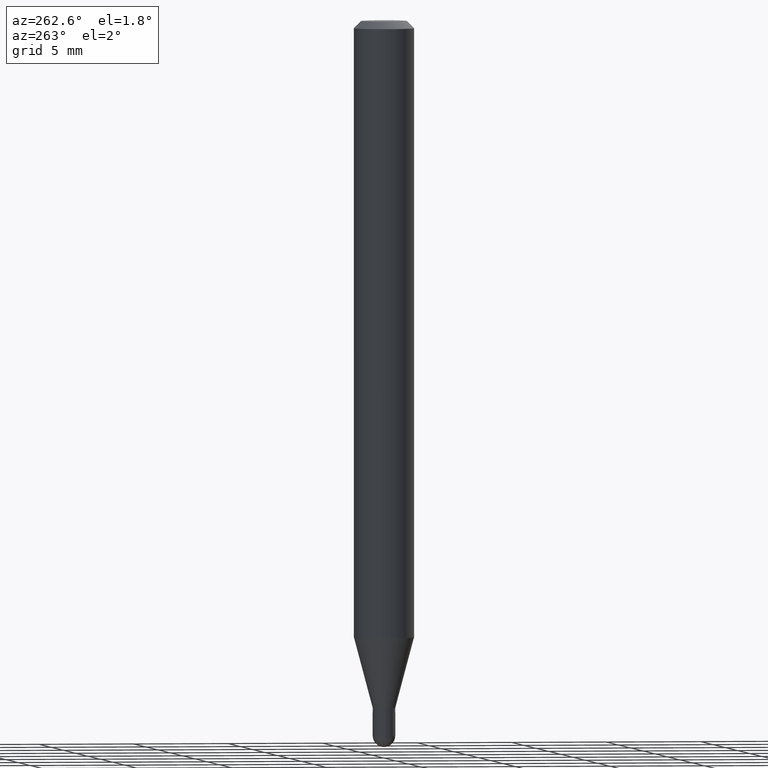
[diagram: clean part render]
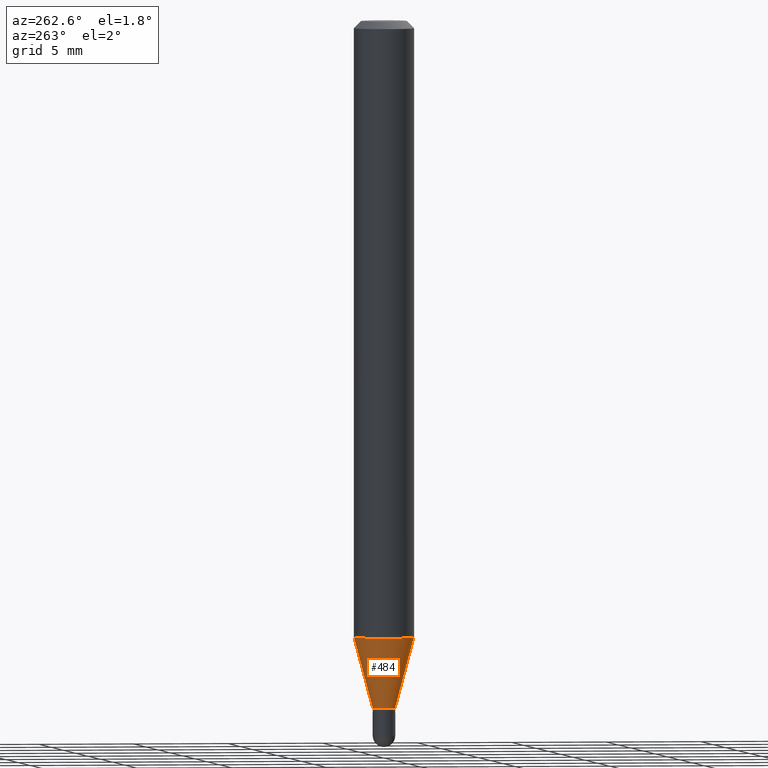
[diagram: same view with one face highlighted and labeled with its STEP entity id]
A machine part, auxiliary view. The second image highlights one B-rep face of the part: STEP entity #484.
In plain terms, the highlighted conical surface has half-angle 15 deg.
Its self-contained STEP definition (entity closure, byte-faithful):
#5 = DIRECTION ( 'NONE',  ( -2.445455239514301425E-29, 3.491500767087948658E-15, 1.000000000000000000 ) ) ;
#13 = AXIS2_PLACEMENT_3D ( 'NONE', #25, #345, #501 ) ;
#25 = CARTESIAN_POINT ( 'NONE',  ( 3.470100984870794187E-29, -4.954439588497799171E-15, -1.419000000000000039 ) ) ;
#51 = DIRECTION ( 'NONE',  ( 1.839019923739601104E-15, 0.2588190451025250693, 0.9659258262890670910 ) ) ;
#52 = EDGE_CURVE ( 'NONE', #496, #346, #210, .T. ) ;
#56 = LINE ( 'NONE', #323, #447 ) ;
#73 = VERTEX_POINT ( 'NONE', #241 ) ;
#74 = VERTEX_POINT ( 'NONE', #477 ) ;
#81 = DIRECTION ( 'NONE',  ( -6.982962677686265922E-15, -1.000000000000000000, 4.370956789862821150E-15 ) ) ;
#97 = ORIENTED_EDGE ( 'NONE', *, *, #52, .F. ) ;
#106 = EDGE_LOOP ( 'NONE', ( #509, #417, #230, #97 ) ) ;
#124 = VECTOR ( 'NONE', #51, 39.37007874015748143 ) ;
#138 = CARTESIAN_POINT ( 'NONE',  ( -4.364351673553606573E-16, -0.06250000000000446865, -1.273450018504813874 ) ) ;
#192 = FACE_OUTER_BOUND ( 'NONE', #106, .T. ) ;
#194 = AXIS2_PLACEMENT_3D ( 'NONE', #399, #5, #81 ) ;
#210 = CIRCLE ( 'NONE', #194, 0.06250000000000000000 ) ;
#214 = DIRECTION ( 'NONE',  ( -1.807323732225330928E-15, -0.2588190451025182970, 0.9659258262890689783 ) ) ;
#230 = ORIENTED_EDGE ( 'NONE', *, *, #249, .T. ) ;
#241 = CARTESIAN_POINT ( 'NONE',  ( -1.640996229255920244E-16, -0.02350000000000488157, -1.419000000000000039 ) ) ;
#249 = EDGE_CURVE ( 'NONE', #73, #346, #56, .T. ) ;
#278 = EDGE_CURVE ( 'NONE', #74, #496, #374, .T. ) ;
#323 = CARTESIAN_POINT ( 'NONE',  ( -1.640996229255920244E-16, -0.02350000000000488157, -1.419000000000000039 ) ) ;
#328 = CARTESIAN_POINT ( 'NONE',  ( 1.669775429036576870E-16, 0.02349999999999496936, -1.419000000000000039 ) ) ;
#345 = DIRECTION ( 'NONE',  ( -2.445455239514301425E-29, 3.491500767087948658E-15, 1.000000000000000000 ) ) ;
#346 = VERTEX_POINT ( 'NONE', #138 ) ;
#349 = CARTESIAN_POINT ( 'NONE',  ( 3.470100984870794187E-29, -4.954439588497799171E-15, -1.419000000000000039 ) ) ;
#362 = DIRECTION ( 'NONE',  ( -6.982962677686266711E-15, -1.000000000000000000, 0.000000000000000000 ) ) ;
#374 = LINE ( 'NONE', #328, #124 ) ;
#376 = CONICAL_SURFACE ( 'NONE', #394, 0.02349999999999992373, 0.2617993877991502960 ) ;
#391 = CARTESIAN_POINT ( 'NONE',  ( 4.440892098500934804E-16, 0.06249999999999553135, -1.273450018504814318 ) ) ;
#394 = AXIS2_PLACEMENT_3D ( 'NONE', #349, #433, #362 ) ;
#399 = CARTESIAN_POINT ( 'NONE',  ( 3.114165020012181903E-29, -4.446251716457720788E-15, -1.273450018504814096 ) ) ;
#405 = CIRCLE ( 'NONE', #13, 0.02349999999999992373 ) ;
#417 = ORIENTED_EDGE ( 'NONE', *, *, #445, .T. ) ;
#433 = DIRECTION ( 'NONE',  ( -2.445455239514301425E-29, 3.491500767087948658E-15, 1.000000000000000000 ) ) ;
#445 = EDGE_CURVE ( 'NONE', #74, #73, #405, .T. ) ;
#447 = VECTOR ( 'NONE', #214, 39.37007874015748143 ) ;
#477 = CARTESIAN_POINT ( 'NONE',  ( 3.055333763768757932E-16, 0.02349999999999496589, -1.419000000000000039 ) ) ;
#484 = ADVANCED_FACE ( 'NONE', ( #192 ), #376, .T. ) ;
#496 = VERTEX_POINT ( 'NONE', #391 ) ;
#501 = DIRECTION ( 'NONE',  ( -6.982962677686266711E-15, -1.000000000000000000, 0.000000000000000000 ) ) ;
#509 = ORIENTED_EDGE ( 'NONE', *, *, #278, .F. ) ;